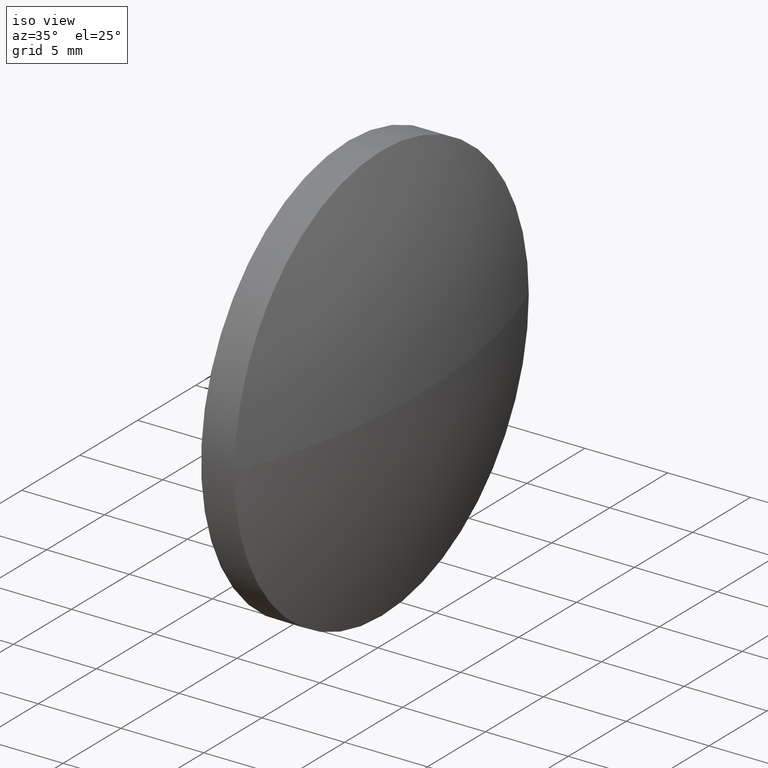
[diagram: clean part render]
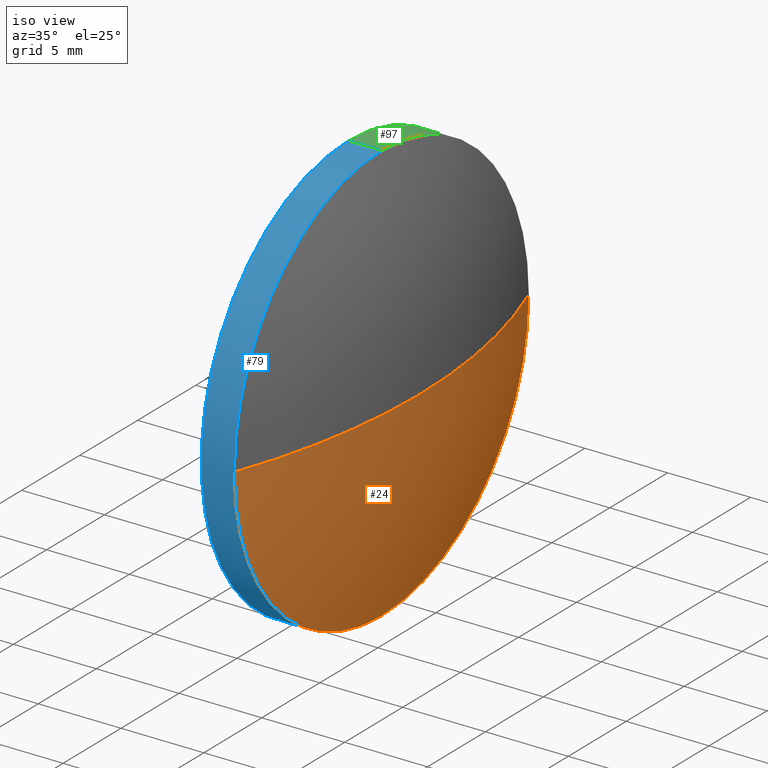
[diagram: same view with three faces highlighted in distinct colors, each labeled with its STEP entity id]
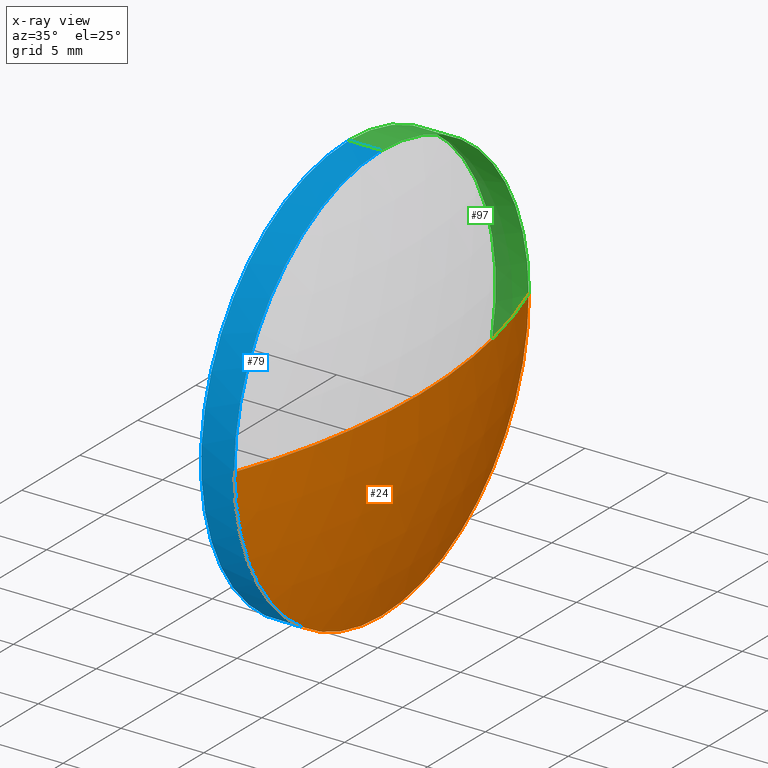
[diagram: x-ray of the same camera — body ghosted, the three highlighted faces saturated]
A machine part, iso view with three faces highlighted in distinct colors.
The next image is the same camera in x-ray (body ghosted, the three faces saturated) — at least one of them is partly hidden behind the body in this view.
Their STEP definitions:

[orange] entity #24 — the highlighted spherical surface has radius 36.213 mm.
#4 = AXIS2_PLACEMENT_3D ( 'NONE', #176, #29, #178 ) ;
#6 = ORIENTED_EDGE ( 'NONE', *, *, #128, .F. ) ;
#7 = DIRECTION ( 'NONE',  ( -1.000000000000000000, -0.0000000000000000000, -0.0000000000000000000 ) ) ;
#9 = CARTESIAN_POINT ( 'NONE',  ( 478.6849602909269400, 137.2007882096437800, 0.0000000000000000000 ) ) ;
#10 = AXIS2_PLACEMENT_3D ( 'NONE', #63, #78, #20 ) ;
#11 = VERTEX_POINT ( 'NONE', #93 ) ;
#16 = AXIS2_PLACEMENT_3D ( 'NONE', #9, #7, #165 ) ;
#20 = DIRECTION ( 'NONE',  ( 0.0000000000000000000, 1.000000000000000000, 0.0000000000000000000 ) ) ;
#24 = ADVANCED_FACE ( 'NONE', ( #41 ), #127, .T. ) ;
#29 = DIRECTION ( 'NONE',  ( -1.000000000000000000, -0.0000000000000000000, -0.0000000000000000000 ) ) ;
#32 = CIRCLE ( 'NONE', #73, 36.21304347826092900 ) ;
#40 = CARTESIAN_POINT ( 'NONE',  ( 444.7719168126660600, 137.2007882096437500, 0.0000000000000000000 ) ) ;
#41 = FACE_OUTER_BOUND ( 'NONE', #180, .T. ) ;
#42 = VERTEX_POINT ( 'NONE', #109 ) ;
#44 = EDGE_CURVE ( 'NONE', #157, #42, #32, .T. ) ;
#45 = CIRCLE ( 'NONE', #16, 12.70000000000004500 ) ;
#63 = CARTESIAN_POINT ( 'NONE',  ( 444.7719168126660600, 137.2007882096437500, 0.0000000000000000000 ) ) ;
#68 = CARTESIAN_POINT ( 'NONE',  ( 480.9849602909269500, 137.2007882096437500, 0.0000000000000000000 ) ) ;
#73 = AXIS2_PLACEMENT_3D ( 'NONE', #122, #147, #160 ) ;
#78 = DIRECTION ( 'NONE',  ( -0.0000000000000000000, 0.0000000000000000000, -1.000000000000000000 ) ) ;
#82 = DIRECTION ( 'NONE',  ( 1.000000000000000000, 0.0000000000000000000, 0.0000000000000000000 ) ) ;
#93 = CARTESIAN_POINT ( 'NONE',  ( 478.6849602909269400, 149.9007882096438200, 0.0000000000000000000 ) ) ;
#96 = CARTESIAN_POINT ( 'NONE',  ( 478.6849602909269400, 137.2007882096437800, -12.70000000000004500 ) ) ;
#99 = CIRCLE ( 'NONE', #181, 36.21304347826092900 ) ;
#104 = EDGE_CURVE ( 'NONE', #157, #11, #99, .T. ) ;
#109 = CARTESIAN_POINT ( 'NONE',  ( 478.6849602909269400, 124.5007882096436900, -1.555301434917144500E-015 ) ) ;
#115 = CIRCLE ( 'NONE', #4, 12.70000000000004500 ) ;
#117 = ORIENTED_EDGE ( 'NONE', *, *, #104, .F. ) ;
#118 = VERTEX_POINT ( 'NONE', #96 ) ;
#122 = CARTESIAN_POINT ( 'NONE',  ( 444.7719168126660600, 137.2007882096437500, 0.0000000000000000000 ) ) ;
#127 = SPHERICAL_SURFACE ( 'NONE', #10, 36.21304347826092900 ) ;
#128 = EDGE_CURVE ( 'NONE', #11, #118, #115, .T. ) ;
#131 = EDGE_CURVE ( 'NONE', #118, #42, #45, .T. ) ;
#145 = ORIENTED_EDGE ( 'NONE', *, *, #44, .T. ) ;
#147 = DIRECTION ( 'NONE',  ( 0.0000000000000000000, 1.224646799147353200E-016, -1.000000000000000000 ) ) ;
#154 = ORIENTED_EDGE ( 'NONE', *, *, #131, .F. ) ;
#157 = VERTEX_POINT ( 'NONE', #68 ) ;
#160 = DIRECTION ( 'NONE',  ( 0.0000000000000000000, 1.000000000000000000, 1.224646799147353500E-016 ) ) ;
#165 = DIRECTION ( 'NONE',  ( 0.0000000000000000000, 0.0000000000000000000, 1.000000000000000000 ) ) ;
#173 = DIRECTION ( 'NONE',  ( -0.0000000000000000000, 0.0000000000000000000, 1.000000000000000000 ) ) ;
#176 = CARTESIAN_POINT ( 'NONE',  ( 478.6849602909269400, 137.2007882096437800, 0.0000000000000000000 ) ) ;
#178 = DIRECTION ( 'NONE',  ( 0.0000000000000000000, 0.0000000000000000000, 1.000000000000000000 ) ) ;
#180 = EDGE_LOOP ( 'NONE', ( #117, #145, #154, #6 ) ) ;
#181 = AXIS2_PLACEMENT_3D ( 'NONE', #40, #173, #82 ) ;

[blue] entity #79 — the highlighted cylindrical surface (partial cylindrical patch) has radius 12.7 mm, axis along (-1, -0, -0).
#3 = DIRECTION ( 'NONE',  ( 0.0000000000000000000, 0.0000000000000000000, 1.000000000000000000 ) ) ;
#7 = DIRECTION ( 'NONE',  ( -1.000000000000000000, -0.0000000000000000000, -0.0000000000000000000 ) ) ;
#9 = CARTESIAN_POINT ( 'NONE',  ( 478.6849602909269400, 137.2007882096437800, 0.0000000000000000000 ) ) ;
#12 = DIRECTION ( 'NONE',  ( 0.0000000000000000000, 0.0000000000000000000, 1.000000000000000000 ) ) ;
#14 = LINE ( 'NONE', #27, #159 ) ;
#16 = AXIS2_PLACEMENT_3D ( 'NONE', #9, #7, #165 ) ;
#26 = AXIS2_PLACEMENT_3D ( 'NONE', #56, #152, #12 ) ;
#27 = CARTESIAN_POINT ( 'NONE',  ( 470.9467422552505700, 137.2007882096437800, -12.70000000000004500 ) ) ;
#34 = ORIENTED_EDGE ( 'NONE', *, *, #131, .T. ) ;
#35 = CARTESIAN_POINT ( 'NONE',  ( 476.6849602909269400, 137.2007882096437800, -12.70000000000004500 ) ) ;
#36 = CARTESIAN_POINT ( 'NONE',  ( 476.6849602909269400, 137.2007882096437800, 0.0000000000000000000 ) ) ;
#37 = ORIENTED_EDGE ( 'NONE', *, *, #139, .T. ) ;
#42 = VERTEX_POINT ( 'NONE', #109 ) ;
#45 = CIRCLE ( 'NONE', #16, 12.70000000000004500 ) ;
#46 = EDGE_CURVE ( 'NONE', #57, #105, #84, .T. ) ;
#47 = VERTEX_POINT ( 'NONE', #119 ) ;
#52 = CARTESIAN_POINT ( 'NONE',  ( 476.6849602909269400, 137.2007882096437800, 12.70000000000004500 ) ) ;
#53 = DIRECTION ( 'NONE',  ( -1.000000000000000000, -0.0000000000000000000, -0.0000000000000000000 ) ) ;
#56 = CARTESIAN_POINT ( 'NONE',  ( 478.6849602909269400, 137.2007882096437800, 0.0000000000000000000 ) ) ;
#57 = VERTEX_POINT ( 'NONE', #35 ) ;
#66 = DIRECTION ( 'NONE',  ( -1.000000000000000000, -0.0000000000000000000, -0.0000000000000000000 ) ) ;
#72 = VECTOR ( 'NONE', #66, 1000.000000000000000 ) ;
#74 = CYLINDRICAL_SURFACE ( 'NONE', #163, 12.70000000000004500 ) ;
#79 = ADVANCED_FACE ( 'NONE', ( #185 ), #74, .T. ) ;
#80 = EDGE_LOOP ( 'NONE', ( #111, #34, #183, #37, #121 ) ) ;
#84 = CIRCLE ( 'NONE', #161, 12.70000000000004500 ) ;
#96 = CARTESIAN_POINT ( 'NONE',  ( 478.6849602909269400, 137.2007882096437800, -12.70000000000004500 ) ) ;
#105 = VERTEX_POINT ( 'NONE', #52 ) ;
#108 = DIRECTION ( 'NONE',  ( -1.000000000000000000, -0.0000000000000000000, -0.0000000000000000000 ) ) ;
#109 = CARTESIAN_POINT ( 'NONE',  ( 478.6849602909269400, 124.5007882096436900, -1.555301434917144500E-015 ) ) ;
#111 = ORIENTED_EDGE ( 'NONE', *, *, #184, .F. ) ;
#118 = VERTEX_POINT ( 'NONE', #96 ) ;
#119 = CARTESIAN_POINT ( 'NONE',  ( 478.6849602909269400, 137.2007882096437800, 12.70000000000004500 ) ) ;
#121 = ORIENTED_EDGE ( 'NONE', *, *, #46, .F. ) ;
#125 = LINE ( 'NONE', #150, #72 ) ;
#131 = EDGE_CURVE ( 'NONE', #118, #42, #45, .T. ) ;
#132 = DIRECTION ( 'NONE',  ( 0.0000000000000000000, 0.0000000000000000000, 1.000000000000000000 ) ) ;
#139 = EDGE_CURVE ( 'NONE', #47, #105, #125, .T. ) ;
#146 = CARTESIAN_POINT ( 'NONE',  ( 470.9467422552505700, 137.2007882096437800, 0.0000000000000000000 ) ) ;
#150 = CARTESIAN_POINT ( 'NONE',  ( 470.9467422552505700, 137.2007882096437800, 12.70000000000004500 ) ) ;
#152 = DIRECTION ( 'NONE',  ( -1.000000000000000000, -0.0000000000000000000, -0.0000000000000000000 ) ) ;
#155 = EDGE_CURVE ( 'NONE', #42, #47, #179, .T. ) ;
#159 = VECTOR ( 'NONE', #53, 1000.000000000000000 ) ;
#161 = AXIS2_PLACEMENT_3D ( 'NONE', #36, #108, #3 ) ;
#162 = DIRECTION ( 'NONE',  ( -1.000000000000000000, -0.0000000000000000000, -0.0000000000000000000 ) ) ;
#163 = AXIS2_PLACEMENT_3D ( 'NONE', #146, #162, #132 ) ;
#165 = DIRECTION ( 'NONE',  ( 0.0000000000000000000, 0.0000000000000000000, 1.000000000000000000 ) ) ;
#179 = CIRCLE ( 'NONE', #26, 12.70000000000004500 ) ;
#183 = ORIENTED_EDGE ( 'NONE', *, *, #155, .T. ) ;
#184 = EDGE_CURVE ( 'NONE', #118, #57, #14, .T. ) ;
#185 = FACE_OUTER_BOUND ( 'NONE', #80, .T. ) ;

[green] entity #97 — the highlighted cylindrical surface (partial cylindrical patch) has radius 12.7 mm, axis along (-1, -0, -0).
#2 = AXIS2_PLACEMENT_3D ( 'NONE', #81, #112, #55 ) ;
#4 = AXIS2_PLACEMENT_3D ( 'NONE', #176, #29, #178 ) ;
#11 = VERTEX_POINT ( 'NONE', #93 ) ;
#14 = LINE ( 'NONE', #27, #159 ) ;
#17 = AXIS2_PLACEMENT_3D ( 'NONE', #170, #50, #106 ) ;
#21 = CIRCLE ( 'NONE', #2, 12.70000000000004500 ) ;
#23 = CARTESIAN_POINT ( 'NONE',  ( 478.6849602909269400, 137.2007882096437800, 0.0000000000000000000 ) ) ;
#27 = CARTESIAN_POINT ( 'NONE',  ( 470.9467422552505700, 137.2007882096437800, -12.70000000000004500 ) ) ;
#29 = DIRECTION ( 'NONE',  ( -1.000000000000000000, -0.0000000000000000000, -0.0000000000000000000 ) ) ;
#35 = CARTESIAN_POINT ( 'NONE',  ( 476.6849602909269400, 137.2007882096437800, -12.70000000000004500 ) ) ;
#47 = VERTEX_POINT ( 'NONE', #119 ) ;
#50 = DIRECTION ( 'NONE',  ( -1.000000000000000000, -0.0000000000000000000, -0.0000000000000000000 ) ) ;
#52 = CARTESIAN_POINT ( 'NONE',  ( 476.6849602909269400, 137.2007882096437800, 12.70000000000004500 ) ) ;
#53 = DIRECTION ( 'NONE',  ( -1.000000000000000000, -0.0000000000000000000, -0.0000000000000000000 ) ) ;
#55 = DIRECTION ( 'NONE',  ( 0.0000000000000000000, 0.0000000000000000000, 1.000000000000000000 ) ) ;
#57 = VERTEX_POINT ( 'NONE', #35 ) ;
#62 = EDGE_LOOP ( 'NONE', ( #116, #88, #186, #140, #164 ) ) ;
#66 = DIRECTION ( 'NONE',  ( -1.000000000000000000, -0.0000000000000000000, -0.0000000000000000000 ) ) ;
#69 = EDGE_CURVE ( 'NONE', #47, #11, #102, .T. ) ;
#72 = VECTOR ( 'NONE', #66, 1000.000000000000000 ) ;
#81 = CARTESIAN_POINT ( 'NONE',  ( 476.6849602909269400, 137.2007882096437800, 0.0000000000000000000 ) ) ;
#87 = CYLINDRICAL_SURFACE ( 'NONE', #17, 12.70000000000004500 ) ;
#88 = ORIENTED_EDGE ( 'NONE', *, *, #184, .T. ) ;
#91 = DIRECTION ( 'NONE',  ( 0.0000000000000000000, 0.0000000000000000000, 1.000000000000000000 ) ) ;
#93 = CARTESIAN_POINT ( 'NONE',  ( 478.6849602909269400, 149.9007882096438200, 0.0000000000000000000 ) ) ;
#96 = CARTESIAN_POINT ( 'NONE',  ( 478.6849602909269400, 137.2007882096437800, -12.70000000000004500 ) ) ;
#97 = ADVANCED_FACE ( 'NONE', ( #166 ), #87, .T. ) ;
#102 = CIRCLE ( 'NONE', #158, 12.70000000000004500 ) ;
#105 = VERTEX_POINT ( 'NONE', #52 ) ;
#106 = DIRECTION ( 'NONE',  ( 0.0000000000000000000, 0.0000000000000000000, 1.000000000000000000 ) ) ;
#112 = DIRECTION ( 'NONE',  ( -1.000000000000000000, -0.0000000000000000000, -0.0000000000000000000 ) ) ;
#115 = CIRCLE ( 'NONE', #4, 12.70000000000004500 ) ;
#116 = ORIENTED_EDGE ( 'NONE', *, *, #128, .T. ) ;
#118 = VERTEX_POINT ( 'NONE', #96 ) ;
#119 = CARTESIAN_POINT ( 'NONE',  ( 478.6849602909269400, 137.2007882096437800, 12.70000000000004500 ) ) ;
#125 = LINE ( 'NONE', #150, #72 ) ;
#128 = EDGE_CURVE ( 'NONE', #11, #118, #115, .T. ) ;
#139 = EDGE_CURVE ( 'NONE', #47, #105, #125, .T. ) ;
#140 = ORIENTED_EDGE ( 'NONE', *, *, #139, .F. ) ;
#143 = EDGE_CURVE ( 'NONE', #105, #57, #21, .T. ) ;
#150 = CARTESIAN_POINT ( 'NONE',  ( 470.9467422552505700, 137.2007882096437800, 12.70000000000004500 ) ) ;
#158 = AXIS2_PLACEMENT_3D ( 'NONE', #23, #172, #91 ) ;
#159 = VECTOR ( 'NONE', #53, 1000.000000000000000 ) ;
#164 = ORIENTED_EDGE ( 'NONE', *, *, #69, .T. ) ;
#166 = FACE_OUTER_BOUND ( 'NONE', #62, .T. ) ;
#170 = CARTESIAN_POINT ( 'NONE',  ( 470.9467422552505700, 137.2007882096437800, 0.0000000000000000000 ) ) ;
#172 = DIRECTION ( 'NONE',  ( -1.000000000000000000, -0.0000000000000000000, -0.0000000000000000000 ) ) ;
#176 = CARTESIAN_POINT ( 'NONE',  ( 478.6849602909269400, 137.2007882096437800, 0.0000000000000000000 ) ) ;
#178 = DIRECTION ( 'NONE',  ( 0.0000000000000000000, 0.0000000000000000000, 1.000000000000000000 ) ) ;
#184 = EDGE_CURVE ( 'NONE', #118, #57, #14, .T. ) ;
#186 = ORIENTED_EDGE ( 'NONE', *, *, #143, .F. ) ;